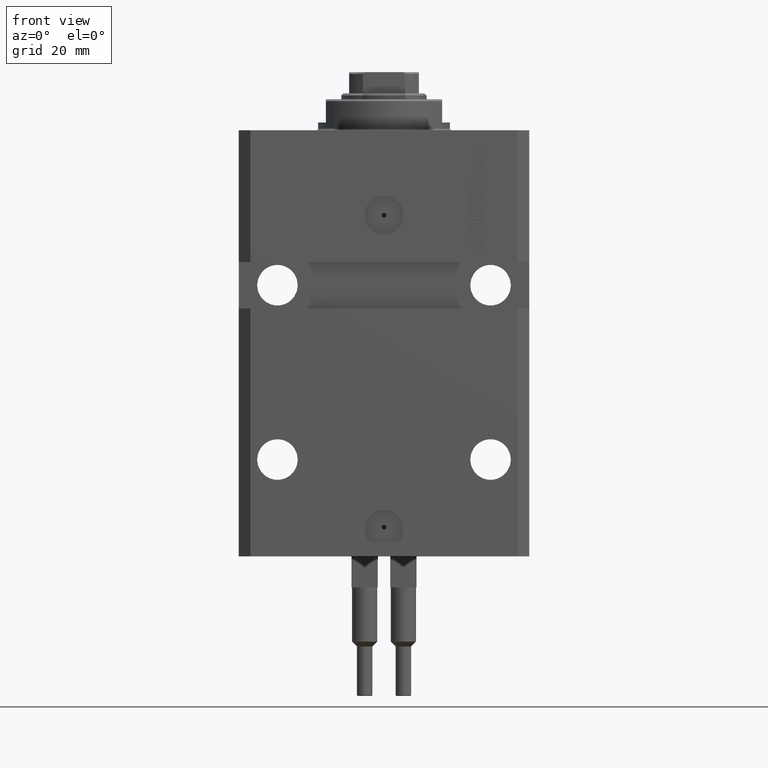
[diagram: clean part render]
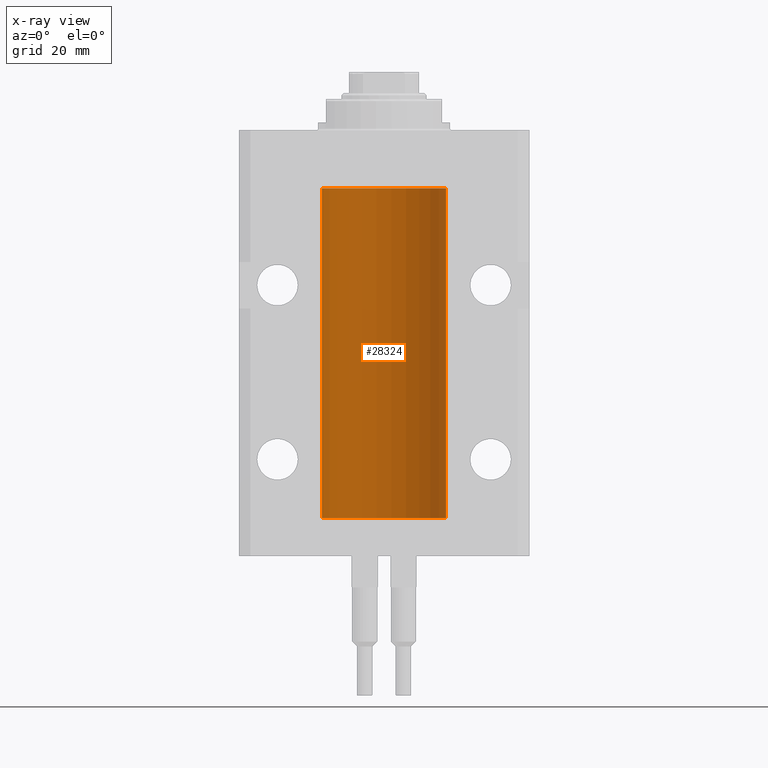
[diagram: x-ray — body ghosted, one internal face saturated and labeled with its STEP entity id]
A machine part, front view, then the same camera in x-ray: the body is ghosted and one INTERNAL B-rep face — a face not visible from any outside direction — is saturated and labeled: STEP entity #28324.
In plain terms, the highlighted cylindrical surface (partial cylindrical patch) has radius 16 mm, axis along (0, 0, 1).
Its self-contained STEP definition (entity closure, byte-faithful):
#266 = ORIENTED_EDGE ( 'NONE', *, *, #27095, .F. ) ;
#666 = CARTESIAN_POINT ( 'NONE',  ( -15.99548640841683067, 0.3843705577988847377, -21.50046628527008608 ) ) ;
#749 = DIRECTION ( 'NONE',  ( 0.000000000000000000, 0.000000000000000000, 1.000000000000000000 ) ) ;
#1103 = DIRECTION ( 'NONE',  ( 0.000000000000000000, 0.000000000000000000, 1.000000000000000000 ) ) ;
#1986 = CARTESIAN_POINT ( 'NONE',  ( 16.00000000000000000, 0.000000000000000000, -15.00000000000000000 ) ) ;
#3839 = CARTESIAN_POINT ( 'NONE',  ( -15.99070426498503217, 0.5462220647145618058, -22.31460064614143590 ) ) ;
#5314 = EDGE_CURVE ( 'NONE', #34855, #34452, #19060, .T. ) ;
#7568 = CARTESIAN_POINT ( 'NONE',  ( -16.00000000000000711, 0.08259886010188650929, -97.37500000000000000 ) ) ;
#7732 = ORIENTED_EDGE ( 'NONE', *, *, #31833, .T. ) ;
#7863 = CIRCLE ( 'NONE', #8628, 16.00000000000000000 ) ;
#7928 = CARTESIAN_POINT ( 'NONE',  ( -16.00000000000000000, 1.959434878635765131E-15, -100.0999999999999943 ) ) ;
#8628 = AXIS2_PLACEMENT_3D ( 'NONE', #34395, #749, #27319 ) ;
#8810 = VERTEX_POINT ( 'NONE', #1986 ) ;
#10182 = VERTEX_POINT ( 'NONE', #13355 ) ;
#10446 = ORIENTED_EDGE ( 'NONE', *, *, #34888, .T. ) ;
#10655 = EDGE_CURVE ( 'NONE', #23808, #47894, #7863, .T. ) ;
#10994 = CARTESIAN_POINT ( 'NONE',  ( -15.98844267028590949, 0.6088369347963275002, -98.16324735024325321 ) ) ;
#11301 = DIRECTION ( 'NONE',  ( -0.000000000000000000, -0.000000000000000000, 1.000000000000000000 ) ) ;
#11422 = CARTESIAN_POINT ( 'NONE',  ( -16.00000000000013145, 3.685127038166941002E-13, -22.62500000000341771 ) ) ;
#11477 = CARTESIAN_POINT ( 'NONE',  ( -15.99228023727724057, 0.5003781296993360383, -98.38347829554236057 ) ) ;
#11718 = CARTESIAN_POINT ( 'NONE',  ( -15.99070653155267685, 0.5573233280232928744, -97.67348148680505915 ) ) ;
#11897 = CARTESIAN_POINT ( 'NONE',  ( -15.98778717651346071, 0.6250289588122140971, -22.08131585687052478 ) ) ;
#12030 = CARTESIAN_POINT ( 'NONE',  ( 16.00000000000000000, 0.000000000000000000, -100.0999999999999943 ) ) ;
#12140 = CARTESIAN_POINT ( 'NONE',  ( -15.99934216141748244, 0.1636497843296417787, -21.39126528029306229 ) ) ;
#12360 = ORIENTED_EDGE ( 'NONE', *, *, #44174, .F. ) ;
#12797 = LINE ( 'NONE', #19609, #13201 ) ;
#13201 = VECTOR ( 'NONE', #19852, 1000.000000000000000 ) ;
#13355 = CARTESIAN_POINT ( 'NONE',  ( -16.00000000000013145, 3.685127046438747128E-13, -98.62500000000343903 ) ) ;
#13708 = DIRECTION ( 'NONE',  ( 1.000000000000000000, 0.000000000000000000, 0.000000000000000000 ) ) ;
#14146 = CARTESIAN_POINT ( 'NONE',  ( -16.00000000000000000, -1.303459030566954747E-14, -97.37500000000000000 ) ) ;
#14639 = CARTESIAN_POINT ( 'NONE',  ( -15.99999999999998934, 0.1631714642025804407, -98.62499999999987210 ) ) ;
#16077 = DIRECTION ( 'NONE',  ( -0.000000000000000000, -0.000000000000000000, 1.000000000000000000 ) ) ;
#16580 = ORIENTED_EDGE ( 'NONE', *, *, #40429, .T. ) ;
#18305 = CARTESIAN_POINT ( 'NONE',  ( -15.99070426498503572, 0.5462220647145610286, -98.31460064614144301 ) ) ;
#18947 = CARTESIAN_POINT ( 'NONE',  ( -15.99711699979842017, 0.3253759916140657737, -22.55856151623175521 ) ) ;
#18962 = CARTESIAN_POINT ( 'NONE',  ( 0.000000000000000000, 0.000000000000000000, -15.00000000000000000 ) ) ;
#19008 = CARTESIAN_POINT ( 'NONE',  ( -15.99934216141748244, 0.1636497843296308152, -97.39126528029306940 ) ) ;
#19060 = B_SPLINE_CURVE_WITH_KNOTS ( 'NONE', 3,
 ( #41597, #40875, #12140, #41344, #666, #23090, #37231, #11897, #27003, #3839, #19669, #18947, #30658, #11422 ),
 .UNSPECIFIED., .F., .F.,
 ( 4, 2, 2, 2, 2, 2, 4 ),
 ( 1.597328219370744179E-19, 0.0002442776652680942405, 0.0004885553305361882643, 0.0009771106610723839011, 0.001221388326340481665, 0.001465665991608579430, 0.001954221322144767369 ),
 .UNSPECIFIED. ) ;
#19131 = DIRECTION ( 'NONE',  ( -0.000000000000000000, -0.000000000000000000, 1.000000000000000000 ) ) ;
#19609 = CARTESIAN_POINT ( 'NONE',  ( -16.00000000000000000, 1.959434878635765131E-15, -100.0999999999999943 ) ) ;
#19624 = VERTEX_POINT ( 'NONE', #14146 ) ;
#19669 = CARTESIAN_POINT ( 'NONE',  ( -15.99228023727724413, 0.5003781296993413674, -22.38347829554236057 ) ) ;
#19731 = CARTESIAN_POINT ( 'NONE',  ( -16.00000000000000000, 1.959434878635765131E-15, -100.0999999999999943 ) ) ;
#19852 = DIRECTION ( 'NONE',  ( -0.000000000000000000, -0.000000000000000000, 1.000000000000000000 ) ) ;
#19874 = ORIENTED_EDGE ( 'NONE', *, *, #48070, .F. ) ;
#23090 = CARTESIAN_POINT ( 'NONE',  ( -15.99070653155267685, 0.5573233280232986475, -21.67348148680506625 ) ) ;
#23519 = DIRECTION ( 'NONE',  ( 1.000000000000000000, 0.000000000000000000, 0.000000000000000000 ) ) ;
#23808 = VERTEX_POINT ( 'NONE', #24102 ) ;
#23923 = ORIENTED_EDGE ( 'NONE', *, *, #10655, .F. ) ;
#24102 = CARTESIAN_POINT ( 'NONE',  ( 16.00000000000000000, 0.000000000000000000, -100.0999999999999943 ) ) ;
#25015 = ORIENTED_EDGE ( 'NONE', *, *, #5314, .T. ) ;
#26578 = CARTESIAN_POINT ( 'NONE',  ( -15.98778717651346604, 0.6250289588122097673, -98.08131585687051768 ) ) ;
#26765 = VECTOR ( 'NONE', #11301, 1000.000000000000000 ) ;
#27003 = CARTESIAN_POINT ( 'NONE',  ( -15.98844267028591482, 0.6088369347963316081, -22.16324735024328518 ) ) ;
#27075 = VERTEX_POINT ( 'NONE', #29155 ) ;
#27095 = EDGE_CURVE ( 'NONE', #34855, #27075, #12797, .T. ) ;
#27319 = DIRECTION ( 'NONE',  ( 1.000000000000000000, 0.000000000000000000, 0.000000000000000000 ) ) ;
#28324 = ADVANCED_FACE ( 'NONE', ( #28815 ), #35645, .F. ) ;
#28815 = FACE_OUTER_BOUND ( 'NONE', #30844, .T. ) ;
#29155 = CARTESIAN_POINT ( 'NONE',  ( -16.00000000000000000, 1.959434878635765131E-15, -15.00000000000000000 ) ) ;
#30658 = CARTESIAN_POINT ( 'NONE',  ( -16.00000000000000000, 0.1631714642025800244, -22.62499999999985789 ) ) ;
#30844 = EDGE_LOOP ( 'NONE', ( #12360, #23923, #16580, #10446, #266, #25015, #19874, #7732 ) ) ;
#31424 = VECTOR ( 'NONE', #16077, 1000.000000000000000 ) ;
#31833 = EDGE_CURVE ( 'NONE', #19624, #10182, #32678, .T. ) ;
#32678 = B_SPLINE_CURVE_WITH_KNOTS ( 'NONE', 3,
 ( #48000, #7568, #19008, #44584, #44342, #11718, #36826, #26578, #10994, #18305, #11477, #33650, #14639, #40692 ),
 .UNSPECIFIED., .F., .F.,
 ( 4, 2, 2, 2, 2, 2, 4 ),
 ( 1.003919637555167698E-18, 0.0002442776652680894158, 0.0004885553305361776391, 0.0009771106610723541940, 0.001221388326340463017, 0.001465665991608572274, 0.001954221322144760863 ),
 .UNSPECIFIED. ) ;
#32680 = AXIS2_PLACEMENT_3D ( 'NONE', #39517, #47065, #13708 ) ;
#32778 = CIRCLE ( 'NONE', #45202, 16.00000000000000000 ) ;
#33650 = CARTESIAN_POINT ( 'NONE',  ( -15.99711699979841661, 0.3253759916140614439, -98.55856151623174810 ) ) ;
#34121 = LINE ( 'NONE', #19731, #31424 ) ;
#34395 = CARTESIAN_POINT ( 'NONE',  ( 0.000000000000000000, 0.000000000000000000, -100.0999999999999943 ) ) ;
#34452 = VERTEX_POINT ( 'NONE', #40947 ) ;
#34855 = VERTEX_POINT ( 'NONE', #45918 ) ;
#34888 = EDGE_CURVE ( 'NONE', #8810, #27075, #32778, .T. ) ;
#35645 = CYLINDRICAL_SURFACE ( 'NONE', #32680, 16.00000000000000000 ) ;
#36826 = CARTESIAN_POINT ( 'NONE',  ( -15.98779057735153941, 0.6249419637998017141, -97.83670145863504786 ) ) ;
#37118 = LINE ( 'NONE', #12030, #26765 ) ;
#37231 = CARTESIAN_POINT ( 'NONE',  ( -15.98779057735153941, 0.6249419637998100407, -21.83670145863507273 ) ) ;
#39517 = CARTESIAN_POINT ( 'NONE',  ( 0.000000000000000000, 0.000000000000000000, -100.0999999999999943 ) ) ;
#40429 = EDGE_CURVE ( 'NONE', #23808, #8810, #37118, .T. ) ;
#40692 = CARTESIAN_POINT ( 'NONE',  ( -16.00000000000013145, 3.685127046438747128E-13, -98.62500000000343903 ) ) ;
#40875 = CARTESIAN_POINT ( 'NONE',  ( -16.00000000000000711, 0.08259886010189904093, -21.37500000000000000 ) ) ;
#40947 = CARTESIAN_POINT ( 'NONE',  ( -16.00000000000013145, 3.685127038166941002E-13, -22.62500000000341771 ) ) ;
#41283 = LINE ( 'NONE', #7928, #47868 ) ;
#41344 = CARTESIAN_POINT ( 'NONE',  ( -15.99707730059171240, 0.3150375992092407373, -21.45402333202571654 ) ) ;
#41597 = CARTESIAN_POINT ( 'NONE',  ( -16.00000000000000000, 1.643679961284177128E-16, -21.37499999999999645 ) ) ;
#43442 = CARTESIAN_POINT ( 'NONE',  ( -16.00000000000000000, 1.959434878635765131E-15, -100.0999999999999943 ) ) ;
#44174 = EDGE_CURVE ( 'NONE', #47894, #10182, #34121, .T. ) ;
#44342 = CARTESIAN_POINT ( 'NONE',  ( -15.99548640841682712, 0.3843705577988784650, -97.50046628527007897 ) ) ;
#44584 = CARTESIAN_POINT ( 'NONE',  ( -15.99707730059171240, 0.3150375992092294686, -97.45402333202572720 ) ) ;
#45202 = AXIS2_PLACEMENT_3D ( 'NONE', #18962, #1103, #23519 ) ;
#45918 = CARTESIAN_POINT ( 'NONE',  ( -16.00000000000000000, 1.643679961284177128E-16, -21.37499999999999645 ) ) ;
#47065 = DIRECTION ( 'NONE',  ( -0.000000000000000000, -0.000000000000000000, 1.000000000000000000 ) ) ;
#47868 = VECTOR ( 'NONE', #19131, 1000.000000000000000 ) ;
#47894 = VERTEX_POINT ( 'NONE', #43442 ) ;
#48000 = CARTESIAN_POINT ( 'NONE',  ( -16.00000000000000000, -1.303459030566954747E-14, -97.37500000000000000 ) ) ;
#48070 = EDGE_CURVE ( 'NONE', #19624, #34452, #41283, .T. ) ;